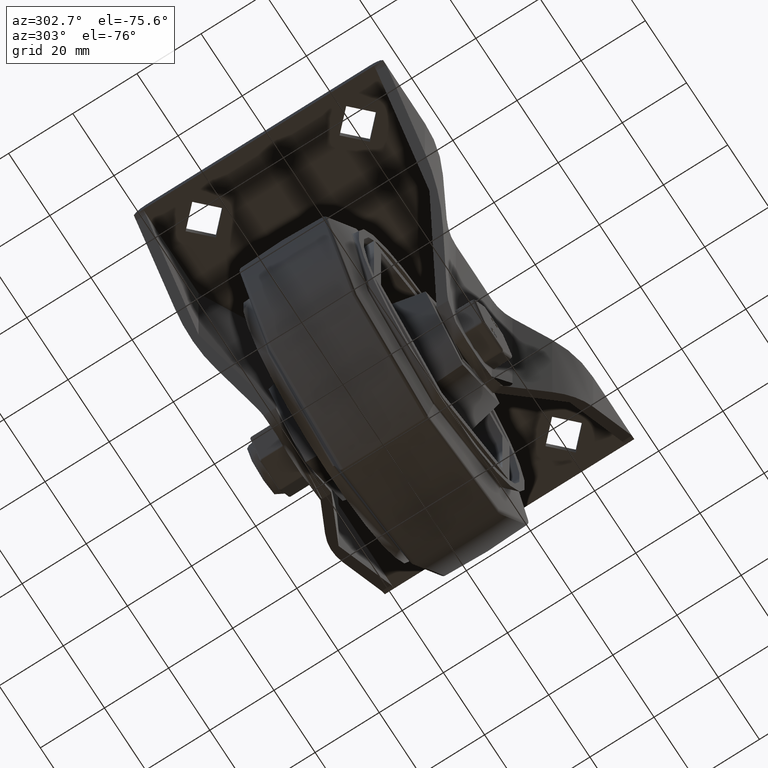
[diagram: clean part render]
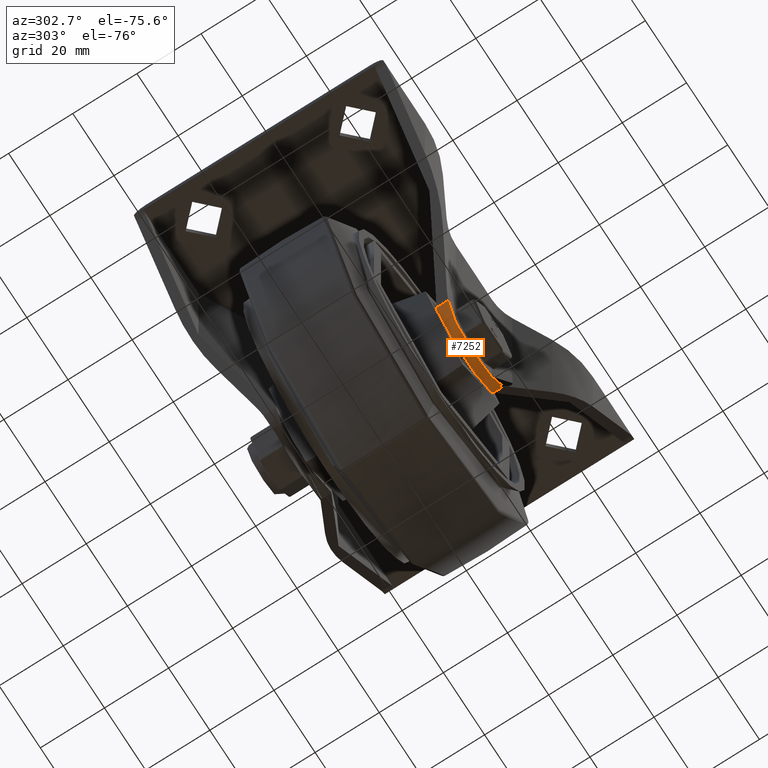
[diagram: same view with one face highlighted and labeled with its STEP entity id]
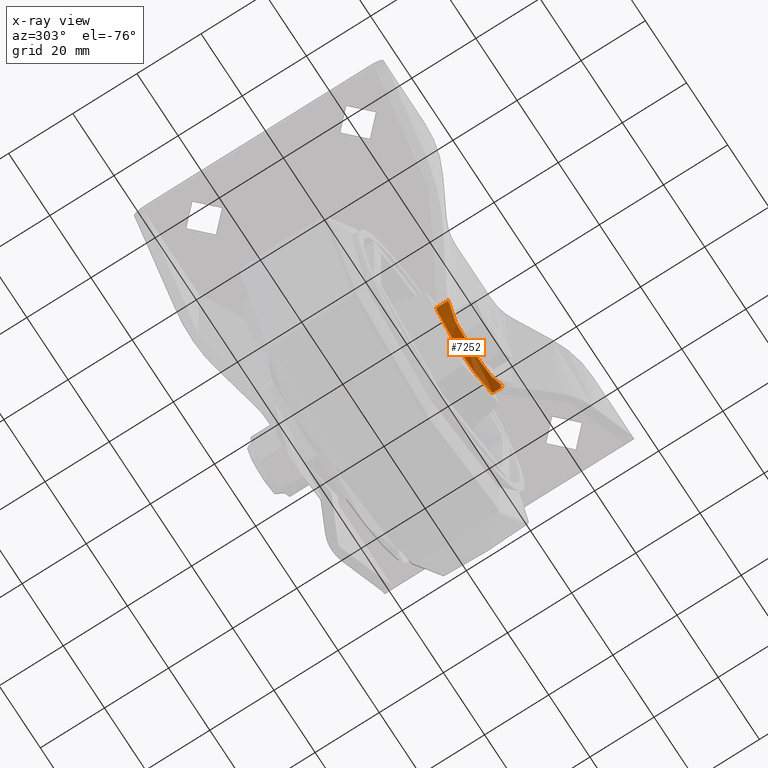
[diagram: x-ray of the same camera — body ghosted, the highlighted face saturated]
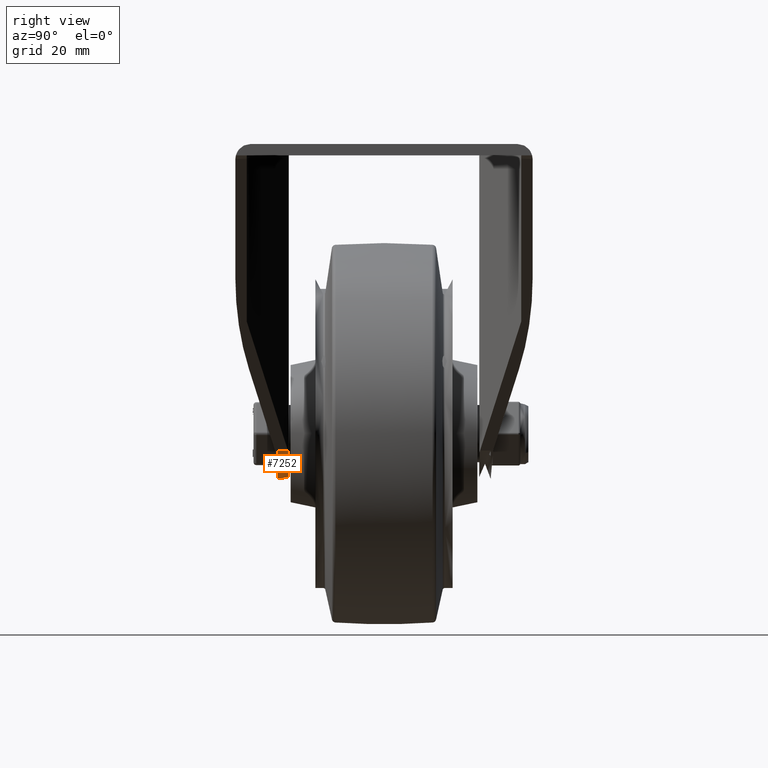
[diagram: same view with one face highlighted and labeled with its STEP entity id]
A machine part, auxiliary view. The second image highlights one B-rep face of the part: STEP entity #7252.
The next image is the same camera in x-ray: the body ghosted, the highlighted face saturated — about 0% of this face is hidden behind the body in this view.
A second angle (right view) of the same face is appended — the face is thin or edge-on in the first view.
In plain terms, the highlighted cylindrical surface (partial cylindrical patch) has radius 16 mm, axis along (0, 1, 0).
Its self-contained STEP definition (entity closure, byte-faithful):
#241=B_SPLINE_CURVE_WITH_KNOTS('',3,(#10808,#10809,#10810,#10811,#10812,
#10813,#10814,#10815,#10816,#10817),.UNSPECIFIED.,.F.,.F.,(4,2,2,2,4),(6.44824379997485,
6.78426544134066,7.20046479217869,7.61666414301673,7.99842425206297),
 .UNSPECIFIED.);
#242=B_SPLINE_CURVE_WITH_KNOTS('',3,(#10821,#10822,#10823,#10824,#10825,
#10826),.UNSPECIFIED.,.F.,.F.,(4,2,4),(8.89358901291657,9.28146154636916,
9.61748318773509),.UNSPECIFIED.);
#505=ELLIPSE('',#7843,18.1211208110246,16.);
#506=ELLIPSE('',#7846,18.1211208110246,16.);
#507=ELLIPSE('',#7851,18.1211208110246,16.);
#508=ELLIPSE('',#7853,18.1211208110246,16.);
#534=CYLINDRICAL_SURFACE('',#7849,16.);
#780=CIRCLE('',#7848,16.);
#781=CIRCLE('',#7850,16.);
#782=CIRCLE('',#7852,16.);
#1064=FACE_OUTER_BOUND('',#1500,.T.);
#1500=EDGE_LOOP('',(#5049,#5050,#5051,#5052,#5053,#5054,#5055,#5056,#5057,
#5058,#5059));
#2006=LINE('',#10827,#2557);
#2007=LINE('',#10830,#2558);
#2557=VECTOR('',#8768,10.);
#2558=VECTOR('',#8771,1.);
#3112=VERTEX_POINT('',#10769);
#3113=VERTEX_POINT('',#10770);
#3117=VERTEX_POINT('',#10789);
#3118=VERTEX_POINT('',#10790);
#3121=VERTEX_POINT('',#10798);
#3122=VERTEX_POINT('',#10803);
#3123=VERTEX_POINT('',#10805);
#3124=VERTEX_POINT('',#10807);
#3125=VERTEX_POINT('',#10818);
#3126=VERTEX_POINT('',#10820);
#3127=VERTEX_POINT('',#10828);
#3845=EDGE_CURVE('',#3112,#3113,#505,.T.);
#3851=EDGE_CURVE('',#3117,#3118,#506,.T.);
#3856=EDGE_CURVE('',#3121,#3117,#780,.F.);
#3858=EDGE_CURVE('',#3122,#3113,#781,.T.);
#3859=EDGE_CURVE('',#3123,#3112,#507,.T.);
#3860=EDGE_CURVE('',#3124,#3123,#241,.T.);
#3861=EDGE_CURVE('',#3124,#3125,#782,.T.);
#3862=EDGE_CURVE('',#3125,#3126,#242,.F.);
#3863=EDGE_CURVE('',#3126,#3118,#2006,.T.);
#3864=EDGE_CURVE('',#3121,#3127,#508,.T.);
#3865=EDGE_CURVE('',#3127,#3122,#2007,.T.);
#5049=ORIENTED_EDGE('',*,*,#3858,.T.);
#5050=ORIENTED_EDGE('',*,*,#3845,.F.);
#5051=ORIENTED_EDGE('',*,*,#3859,.F.);
#5052=ORIENTED_EDGE('',*,*,#3860,.F.);
#5053=ORIENTED_EDGE('',*,*,#3861,.T.);
#5054=ORIENTED_EDGE('',*,*,#3862,.T.);
#5055=ORIENTED_EDGE('',*,*,#3863,.T.);
#5056=ORIENTED_EDGE('',*,*,#3851,.F.);
#5057=ORIENTED_EDGE('',*,*,#3856,.F.);
#5058=ORIENTED_EDGE('',*,*,#3864,.T.);
#5059=ORIENTED_EDGE('',*,*,#3865,.T.);
#7252=ADVANCED_FACE('',(#1064),#534,.T.);
#7843=AXIS2_PLACEMENT_3D('',#10771,#8739,#8740);
#7846=AXIS2_PLACEMENT_3D('',#10791,#8749,#8750);
#7848=AXIS2_PLACEMENT_3D('',#10800,#8757,#8758);
#7849=AXIS2_PLACEMENT_3D('',#10802,#8760,#8761);
#7850=AXIS2_PLACEMENT_3D('',#10804,#8762,#8763);
#7851=AXIS2_PLACEMENT_3D('',#10806,#8764,#8765);
#7852=AXIS2_PLACEMENT_3D('',#10819,#8766,#8767);
#7853=AXIS2_PLACEMENT_3D('',#10829,#8769,#8770);
#8739=DIRECTION('center_axis',(0.469471562785889,0.882947592858928,0.));
#8740=DIRECTION('ref_axis',(0.882947592858928,-0.469471562785889,0.));
#8749=DIRECTION('center_axis',(-0.469471562785892,0.882947592858926,0.));
#8750=DIRECTION('ref_axis',(0.882947592858926,0.469471562785892,0.));
#8757=DIRECTION('center_axis',(0.,-1.,0.));
#8758=DIRECTION('ref_axis',(0.,0.,1.));
#8760=DIRECTION('center_axis',(0.,1.,0.));
#8761=DIRECTION('ref_axis',(0.256624313541812,0.,-0.966511232060546));
#8762=DIRECTION('center_axis',(0.,1.,0.));
#8763=DIRECTION('ref_axis',(0.,0.,1.));
#8764=DIRECTION('center_axis',(0.469471562785889,0.882947592858928,0.));
#8765=DIRECTION('ref_axis',(0.882947592858928,-0.469471562785889,0.));
#8766=DIRECTION('center_axis',(0.,1.,0.));
#8767=DIRECTION('ref_axis',(0.,0.,1.));
#8768=DIRECTION('',(0.,1.,0.));
#8769=DIRECTION('center_axis',(-0.469471562785889,-0.882947592858928,0.));
#8770=DIRECTION('ref_axis',(0.882947592858928,-0.469471562785889,0.));
#8771=DIRECTION('',(0.,-1.,0.));
#10769=CARTESIAN_POINT('',(494.761983868417,-78.7982835882847,-80.4342919991426));
#10770=CARTESIAN_POINT('',(493.627577964675,-78.1951092699324,-82.0813620530414));
#10771=CARTESIAN_POINT('Origin',(481.043513280452,-71.5040433886929,-72.2));
#10789=CARTESIAN_POINT('',(467.7114645877,-75.1951092699324,-81.0462691375569));
#10790=CARTESIAN_POINT('',(467.325042692487,-75.4005734362177,-80.4342919991425));
#10791=CARTESIAN_POINT('Origin',(481.043513280452,-68.1063332366261,-72.2));
#10798=CARTESIAN_POINT('',(494.375561973204,-75.1951092699324,-81.0462691375571));
#10800=CARTESIAN_POINT('Origin',(481.043513280452,-75.1951092699324,-72.2));
#10802=CARTESIAN_POINT('Origin',(481.043513280452,151.332448713848,-72.2));
#10803=CARTESIAN_POINT('',(494.761983868417,-78.1951092699324,-80.4342919991423));
#10804=CARTESIAN_POINT('Origin',(481.043513280452,-78.1951092699324,-72.2));
#10805=CARTESIAN_POINT('',(497.039803143787,-80.009421580619,-72.5445440583784));
#10806=CARTESIAN_POINT('Origin',(481.043513280452,-71.5040433886929,-72.2));
#10807=CARTESIAN_POINT('',(489.762993920606,-78.1951092699324,-85.6153142850245));
#10808=CARTESIAN_POINT('Ctrl Pts',(489.762993920601,-78.1951092699324,-85.6153142850279));
#10809=CARTESIAN_POINT('Ctrl Pts',(490.70253037004,-78.1951092699321,-85.0046487644483));
#10810=CARTESIAN_POINT('Ctrl Pts',(491.579700232719,-78.2809068347848,-84.2934569076414));
#10811=CARTESIAN_POINT('Ctrl Pts',(493.356089716298,-78.5843884811949,-82.5120316109624));
#10812=CARTESIAN_POINT('Ctrl Pts',(494.210502945586,-78.8285852829548,-81.3962946553831));
#10813=CARTESIAN_POINT('Ctrl Pts',(495.601938479464,-79.3180207463087,-78.9818582607853));
#10814=CARTESIAN_POINT('Ctrl Pts',(496.140264879277,-79.5621462995571,-77.6805615349115));
#10815=CARTESIAN_POINT('Ctrl Pts',(496.83141112062,-79.8957510529894,-75.0951038364238));
#10816=CARTESIAN_POINT('Ctrl Pts',(497.012372483415,-79.9948364397827,-73.8180787014315));
#10817=CARTESIAN_POINT('Ctrl Pts',(497.039803143786,-80.0094215806186,-72.5445440584133));
#10818=CARTESIAN_POINT('',(472.324032640299,-78.1951092699324,-85.6153142850253));
#10819=CARTESIAN_POINT('Origin',(481.043513280452,-78.1951092699324,-72.2));
#10820=CARTESIAN_POINT('',(467.325042692487,-79.0233643327523,-80.4342919991423));
#10821=CARTESIAN_POINT('Ctrl Pts',(467.325042692487,-79.0233643327524,-80.4342919991418));
#10822=CARTESIAN_POINT('Ctrl Pts',(467.993306997631,-78.7956718150454,-81.5476317029159));
#10823=CARTESIAN_POINT('Ctrl Pts',(468.797831362345,-78.5729600987559,-82.5791157652043));
#10824=CARTESIAN_POINT('Ctrl Pts',(470.507326328185,-78.2809068347849,-84.2934569076418));
#10825=CARTESIAN_POINT('Ctrl Pts',(471.384496190864,-78.1951092699321,-85.0046487644489));
#10826=CARTESIAN_POINT('Ctrl Pts',(472.324032640304,-78.1951092699324,-85.6153142850286));
#10827=CARTESIAN_POINT('',(467.325042692487,151.332448713848,-80.4342919991423));
#10828=CARTESIAN_POINT('',(494.761983868417,-75.4005734362178,-80.4342919991423));
#10829=CARTESIAN_POINT('Origin',(481.043513280452,-68.1063332366262,-72.2));
#10830=CARTESIAN_POINT('',(494.761983868417,151.332448713848,-80.4342919991423));